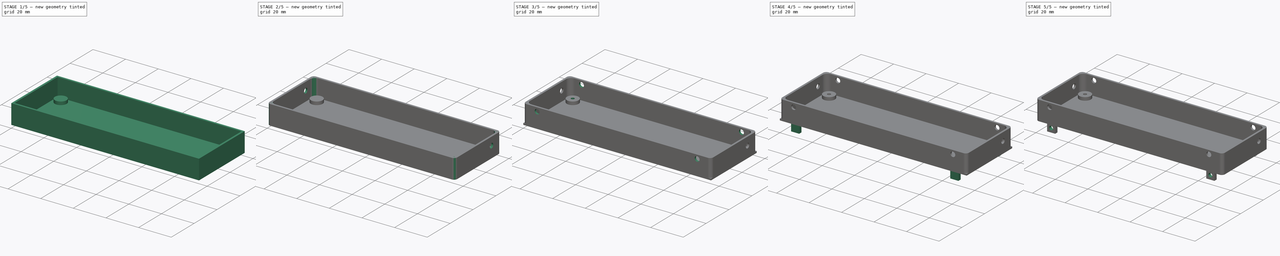
[diagram: build sequence overview — one tinted view per stage of 5, left to right]
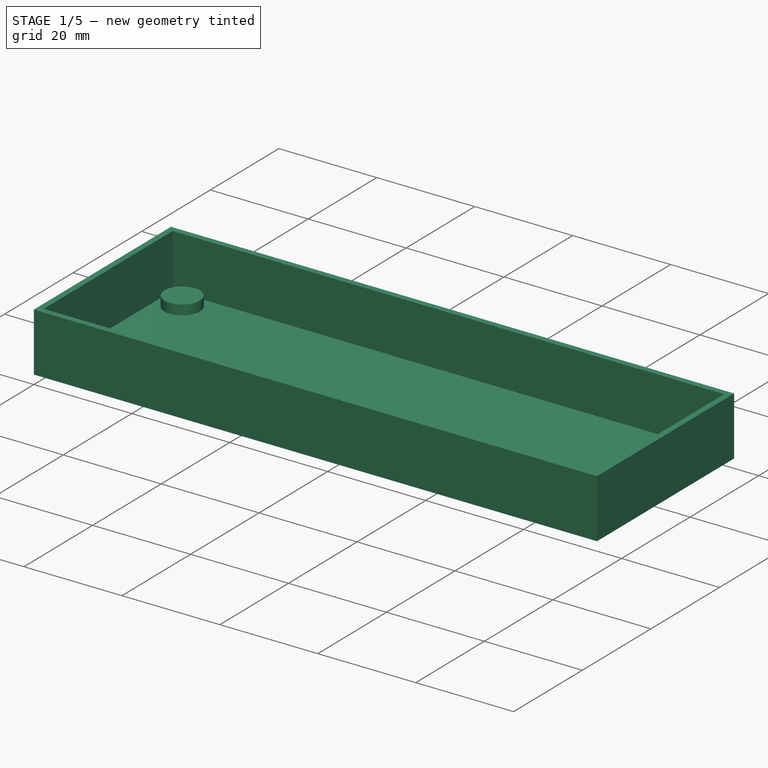
[diagram: stage 1 of 5 — iso view after this stage's code; geometry added in this stage tinted green]
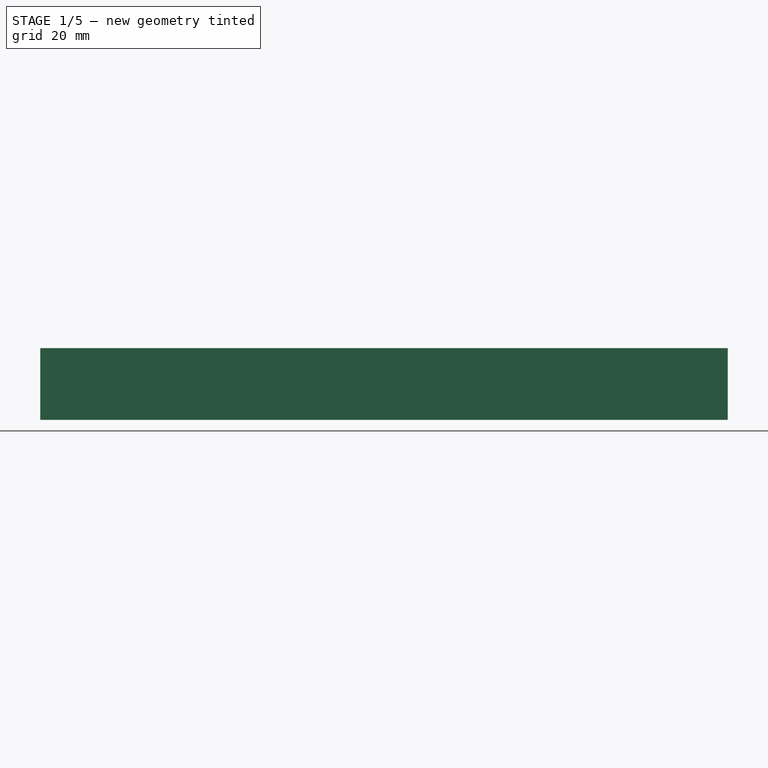
[diagram: stage 1 of 5 — front view after this stage's code; geometry added in this stage tinted green]
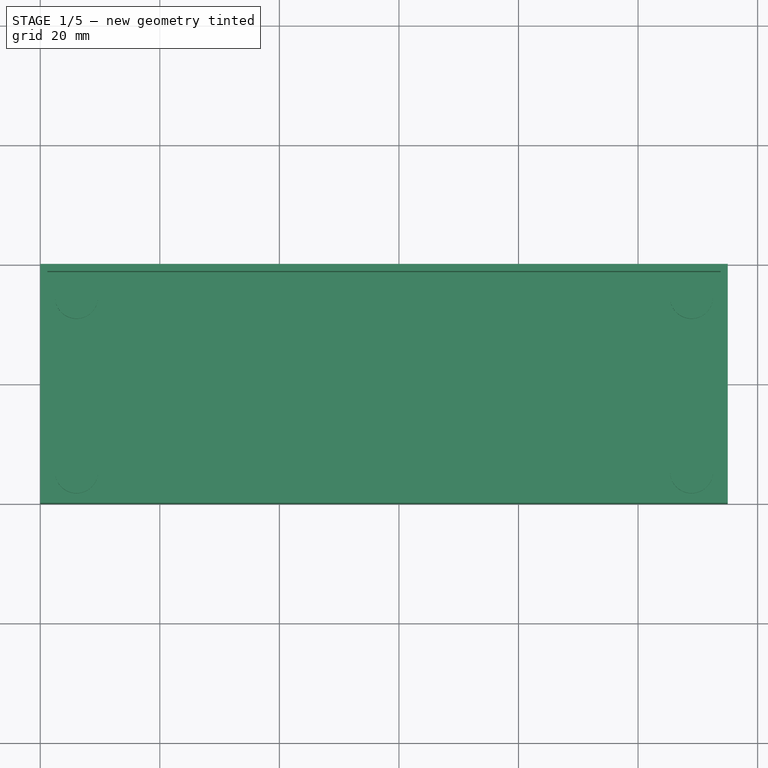
[diagram: stage 1 of 5 — top view after this stage's code; geometry added in this stage tinted green]
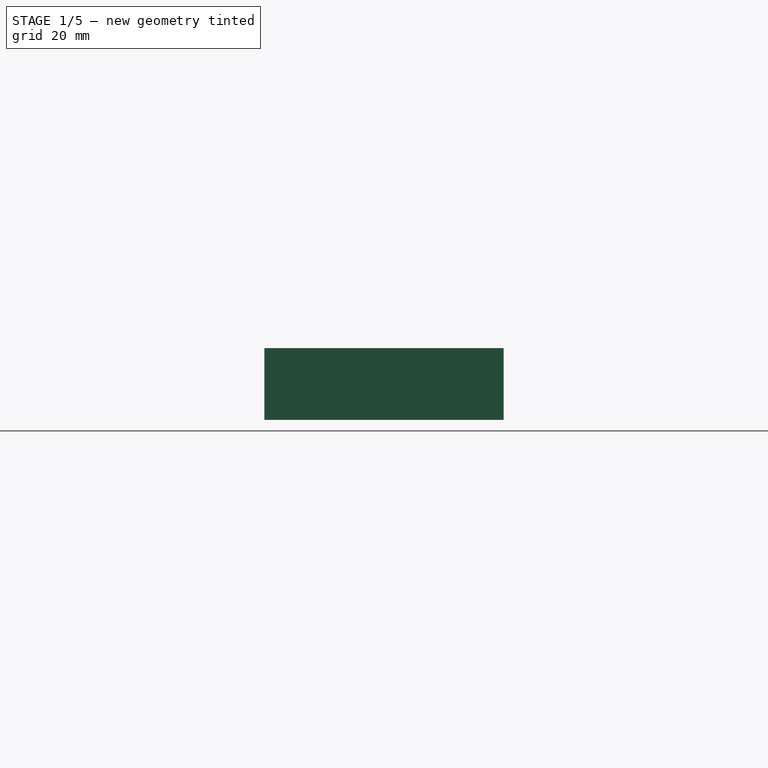
[diagram: stage 1 of 5 — right view after this stage's code; geometry added in this stage tinted green]
FCSTD DOCUMENT  (FreeCAD 0.19R24291 (Git))
Label: case
License: All rights reserved
LicenseURL: http://en.wikipedia.org/wiki/All_rights_reserved
objects: Sketcher::SketchObject×12, PartDesign::Pocket×8, PartDesign::Pad×4, PartDesign::Fillet×3, PartDesign::Body×2, Part::Feature×1
note: 45 computed .brp shape members not serialized (recipe doc carries the construction recipe); baked Part::Feature solids carry a one-line shape summary decoded from their .brp

FEATURE [Part::Feature] Feature  label="pcb"
  Placement = pos=(-24.48,109.52,3) rot=(0,0,1;0rad)
  shape: bbox 110.5 x 36.83 x 13 mm, 2263 faces, 84 solids (baked)
FEATURE [Sketcher::SketchObject] Sketch
  FullyConstrained = true
  MapMode = 5
  Support = -> [XY_Plane]
  sketch-geometry (4):
    g0: LineSegment StartX=0 StartY=0 StartZ=0 EndX=115 EndY=0 EndZ=0
    g1: LineSegment StartX=115 StartY=0 StartZ=0 EndX=115 EndY=40 EndZ=0
    g2: LineSegment StartX=115 StartY=40 StartZ=0 EndX=0 EndY=40 EndZ=0
    g3: LineSegment StartX=0 StartY=40 StartZ=0 EndX=0 EndY=0 EndZ=0
  constraints (11):
    c: Coincident(g0,g1)
    c: Coincident(g1,g2)
    c: Coincident(g2,g3)
    c: Coincident(g3,g0)
    c: Horizontal(g0)
    c: Horizontal(g2)
    c: Vertical(g1)
    c: Vertical(g3)
    c: Coincident(g0,g-1)
    c: DistanceX(g0,g0) = 115
    c: DistanceY(g3,g3) = 40
FEATURE [PartDesign::Pad] Pad
  Direction = (1,1,1)
  Length = 12
  Length2 = 100
  Profile = -> Sketch
  Type = 0
FEATURE [Sketcher::SketchObject] Sketch001
  ExternalGeometry = -> [Pad]
  FullyConstrained = true
  MapMode = 5
  Placement = pos=(0,0,12) rot=(0,0,1;0rad)
  Support = -> [Pad]
  sketch-geometry (12):
    g0: LineSegment StartX=1.2 StartY=1.2 StartZ=0 EndX=113.8 EndY=1.2 EndZ=0
    g1: LineSegment StartX=113.8 StartY=1.2 StartZ=0 EndX=113.8 EndY=38.8 EndZ=0
    g2: LineSegment StartX=113.8 StartY=38.8 StartZ=0 EndX=1.2 EndY=38.8 EndZ=0
    g3: LineSegment StartX=1.2 StartY=38.8 StartZ=0 EndX=1.2 EndY=1.2 EndZ=0
    g4: LineSegment StartX=115 StartY=40 StartZ=0 EndX=113.8 EndY=40 EndZ=0
    g5: LineSegment StartX=113.8 StartY=40 StartZ=0 EndX=113.8 EndY=38.8 EndZ=0
    g6: LineSegment StartX=113.8 StartY=38.8 StartZ=0 EndX=115 EndY=38.8 EndZ=0
    g7: LineSegment StartX=115 StartY=38.8 StartZ=0 EndX=115 EndY=40 EndZ=0
    g8: LineSegment StartX=0 StartY=0 StartZ=0 EndX=1.2 EndY=0 EndZ=0
    g9: LineSegment StartX=1.2 StartY=0 StartZ=0 EndX=1.2 EndY=1.2 EndZ=0
    g10: LineSegment StartX=1.2 StartY=1.2 StartZ=0 EndX=0 EndY=1.2 EndZ=0
    g11: LineSegment StartX=0 StartY=1.2 StartZ=0 EndX=0 EndY=0 EndZ=0
  constraints (32):
    c: Coincident(g0,g1)
    c: Coincident(g1,g2)
    c: Coincident(g2,g3)
    c: Coincident(g3,g0)
    c: Horizontal(g0)
    c: Horizontal(g2)
    c: Vertical(g1)
    c: Vertical(g3)
    c: Coincident(g4,g5)
    c: Coincident(g5,g6)
    c: Coincident(g6,g7)
    c: Coincident(g7,g4)
    c: Horizontal(g4)
    c: Horizontal(g6)
    c: Vertical(g5)
    c: Vertical(g7)
    c: Coincident(g4,g-3)
    c: Coincident(g5,g1)
    c: Coincident(g8,g9)
    c: Coincident(g9,g10)
    c: Coincident(g10,g11)
    c: Coincident(g11,g8)
    c: Horizontal(g8)
    c: Horizontal(g10)
    c: Vertical(g9)
    c: Vertical(g11)
    c: Coincident(g8,g-1)
    c: Coincident(g9,g0)
    c: Equal(g11,g8)
    c: Equal(g8,g7)
    c: Equal(g7,g4)
    c: DistanceX(g4,g4) = 1.2
FEATURE [PartDesign::Pocket] Pocket
  BaseFeature = -> Pad
  Length = 0
  Length2 = 100
  Offset = -1
  Profile = -> Sketch001
  Type = 3
  UpToFace = -> Pad [Face5]
FEATURE [Sketcher::SketchObject] Sketch002
  ExternalGeometry = -> [Pocket]
  FullyConstrained = true
  MapMode = 5
  Placement = pos=(0,0,1) rot=(0,0,1;0rad)
  Support = -> [Pocket]
  sketch-geometry (16):
    g0: LineSegment StartX=1.2 StartY=1.2 StartZ=0 EndX=6.065 EndY=1.2 EndZ=0
    g1: LineSegment StartX=6.065 StartY=1.2 StartZ=0 EndX=6.065 EndY=5.395 EndZ=0
    g2: LineSegment StartX=6.065 StartY=5.395 StartZ=0 EndX=1.2 EndY=5.395 EndZ=0
    g3: LineSegment StartX=1.2 StartY=5.395 StartZ=0 EndX=1.2 EndY=1.2 EndZ=0
    g4: LineSegment StartX=113.8 StartY=38.8 StartZ=0 EndX=108.935 EndY=38.8 EndZ=0
    g5: LineSegment StartX=108.935 StartY=38.8 StartZ=0 EndX=108.935 EndY=34.605 EndZ=0
    g6: LineSegment StartX=108.935 StartY=34.605 StartZ=0 EndX=113.8 EndY=34.605 EndZ=0
    g7: LineSegment StartX=113.8 StartY=34.605 StartZ=0 EndX=113.8 EndY=38.8 EndZ=0
    g8: LineSegment StartX=6.065 StartY=5.395 StartZ=0 EndX=108.935 EndY=5.395 EndZ=0
    g9: LineSegment StartX=108.935 StartY=5.395 StartZ=0 EndX=108.935 EndY=34.605 EndZ=0
    g10: LineSegment StartX=108.935 StartY=34.605 StartZ=0 EndX=6.065 EndY=34.605 EndZ=0
    g11: LineSegment StartX=6.065 StartY=34.605 StartZ=0 EndX=6.065 EndY=5.395 EndZ=0
    g12: Circle CenterX=6.065 CenterY=34.605 CenterZ=0 NormalX=0 NormalY=0 NormalZ=1 AngleXU=0 Radius=3.6
    g13: Circle CenterX=6.065 CenterY=5.395 CenterZ=0 NormalX=0 NormalY=0 NormalZ=1 AngleXU=0 Radius=3.6
    g14: Circle CenterX=108.935 CenterY=34.605 CenterZ=0 NormalX=0 NormalY=0 NormalZ=1 AngleXU=0 Radius=3.6
    g15: Circle CenterX=108.935 CenterY=5.395 CenterZ=0 NormalX=0 NormalY=0 NormalZ=1 AngleXU=0 Radius=3.6
  constraints (40):
    c: Coincident(g0,g1)
    c: Coincident(g1,g2)
    c: Coincident(g2,g3)
    c: Coincident(g3,g0)
    c: Horizontal(g0)
    c: Horizontal(g2)
    c: Vertical(g1)
    c: Vertical(g3)
    c: Coincident(g4,g5)
    c: Coincident(g5,g6)
    c: Coincident(g6,g7)
    c: Coincident(g7,g4)
    c: Horizontal(g4)
    c: Horizontal(g6)
    c: Vertical(g5)
    c: Vertical(g7)
    c: Coincident(g4,g-3)
    c: Coincident(g8,g9)
    c: Coincident(g9,g10)
    c: Coincident(g10,g11)
    c: Coincident(g11,g8)
    c: Horizontal(g8)
    c: Horizontal(g10)
    c: Vertical(g9)
    c: Vertical(g11)
    c: Coincident(g8,g1)
    c: Coincident(g9,g5)
    c: Coincident(g0,g-4)
    c: DistanceY(g11,g11) = 29.21
    c: Equal(g7,g3)
    c: Equal(g0,g4)
    c: DistanceX(g10,g10) = 102.87
    c: Coincident(g12,g10)
    c: Coincident(g13,g1)
    c: Coincident(g14,g5)
    c: Coincident(g15,g8)
    c: Equal(g12,g13)
    c: Equal(g13,g14)
    c: Equal(g14,g15)
    c: Radius(g12) = 3.6
FEATURE [PartDesign::Pad] Pad001
  BaseFeature = -> Pocket
  Direction = (1,1,1)
  Length = 2
  Length2 = 100
  Profile = -> Sketch002
  Type = 0
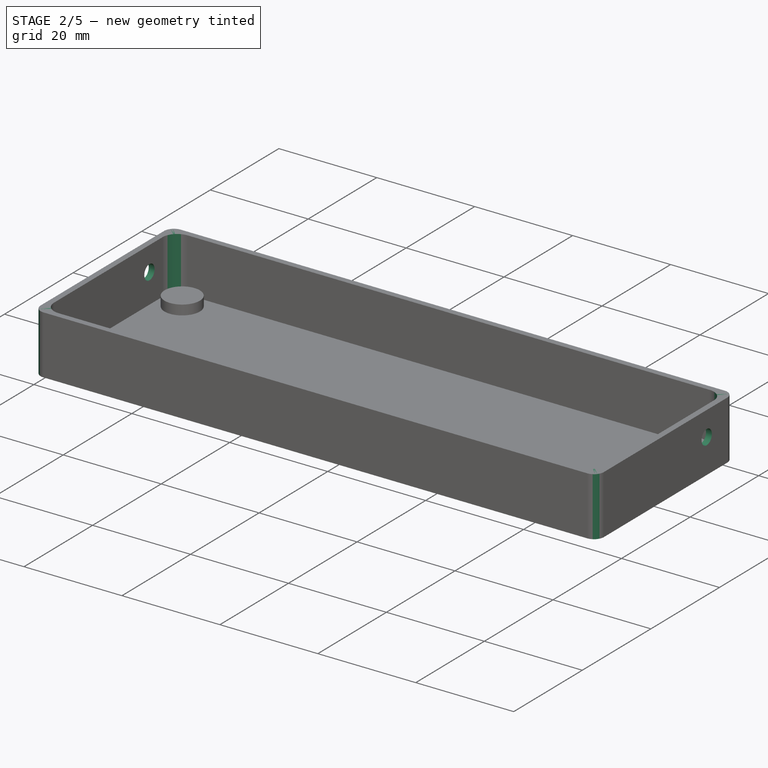
[diagram: stage 2 of 5 — iso view after this stage's code; geometry added in this stage tinted green]
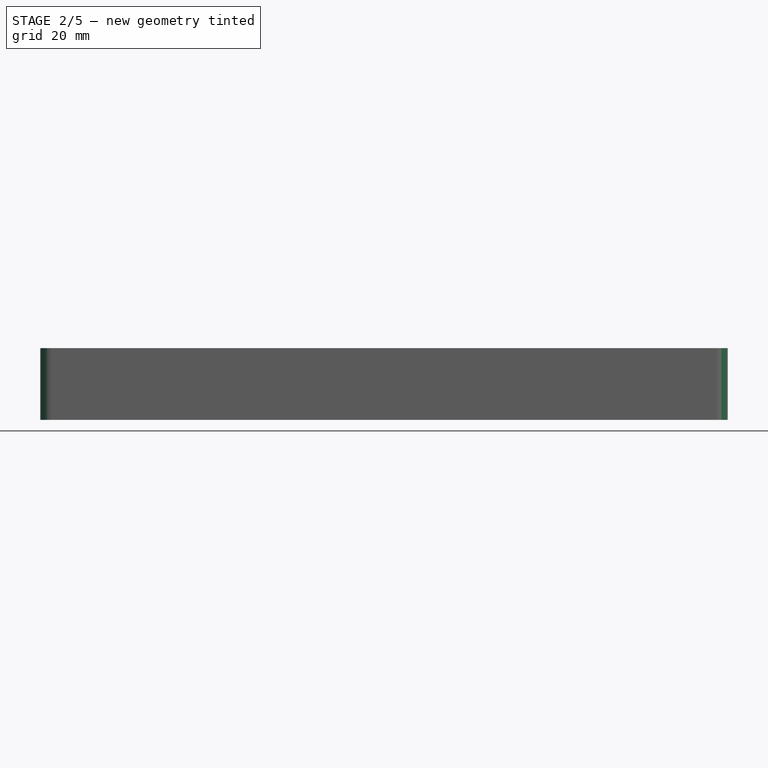
[diagram: stage 2 of 5 — front view after this stage's code; geometry added in this stage tinted green]
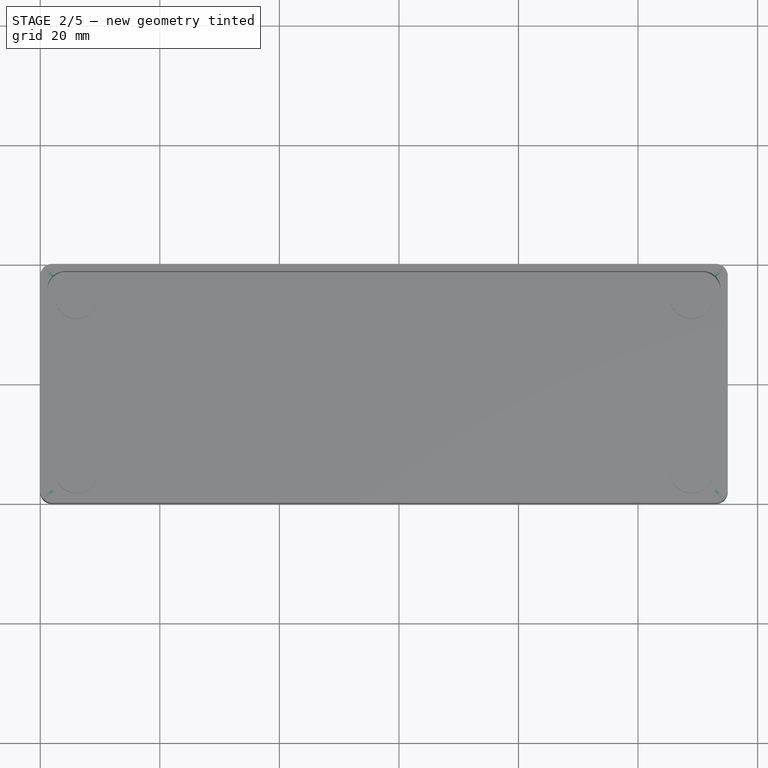
[diagram: stage 2 of 5 — top view after this stage's code; geometry added in this stage tinted green]
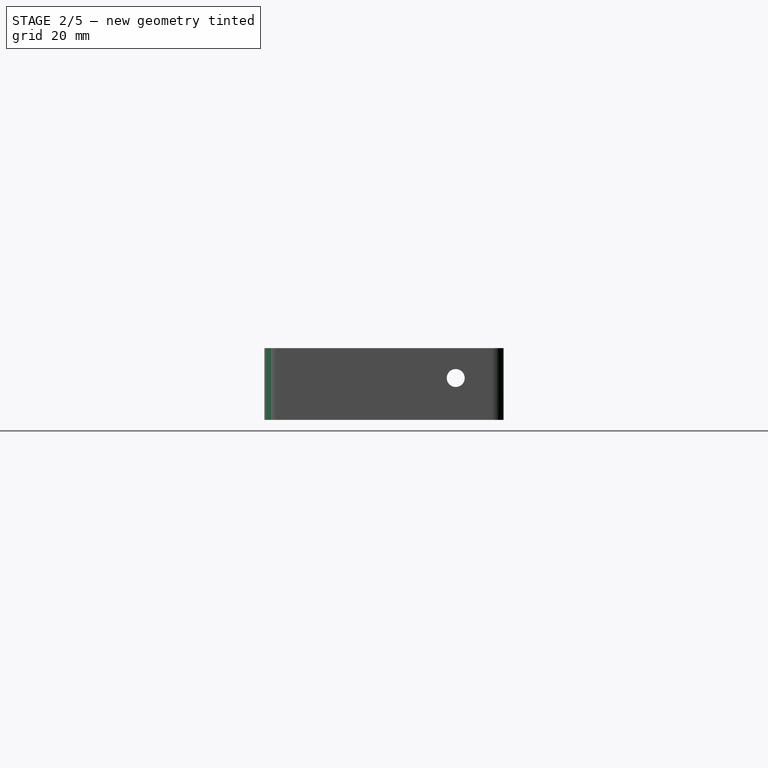
[diagram: stage 2 of 5 — right view after this stage's code; geometry added in this stage tinted green]
FEATURE [Sketcher::SketchObject] Sketch004
  ExternalGeometry = -> [Pad001]
  FullyConstrained = true
  MapMode = 5
  Placement = pos=(0,0,0) rot=(0.57735,-0.57735,-0.57735;2.0944rad)
  Support = -> [Pad001]
  sketch-geometry (1):
    g0: Circle CenterX=-32 CenterY=7 CenterZ=0 NormalX=0 NormalY=0 NormalZ=1 AngleXU=0 Radius=1.5
  constraints (3):
    c: DistanceX(g-3,g0) = 8
    c: DistanceY(g-3,g0) = 7
    c: Radius(g0) = 1.5
FEATURE [PartDesign::Pocket] Pocket001
  BaseFeature = -> Pad001
  Length = 5
  Length2 = 100
  Profile = -> Sketch004
  Type = 1
FEATURE [PartDesign::Fillet] Fillet
  Base = -> Pocket001 [Edge28,Edge25,Edge23,Edge26]
  BaseFeature = -> Pocket001
  Radius = 3
  SupportTransform = false
FEATURE [PartDesign::Fillet] Fillet001
  Base = -> Fillet [Edge32,Edge38,Edge34,Edge31]
  BaseFeature = -> Fillet
  Radius = 2
  SupportTransform = false
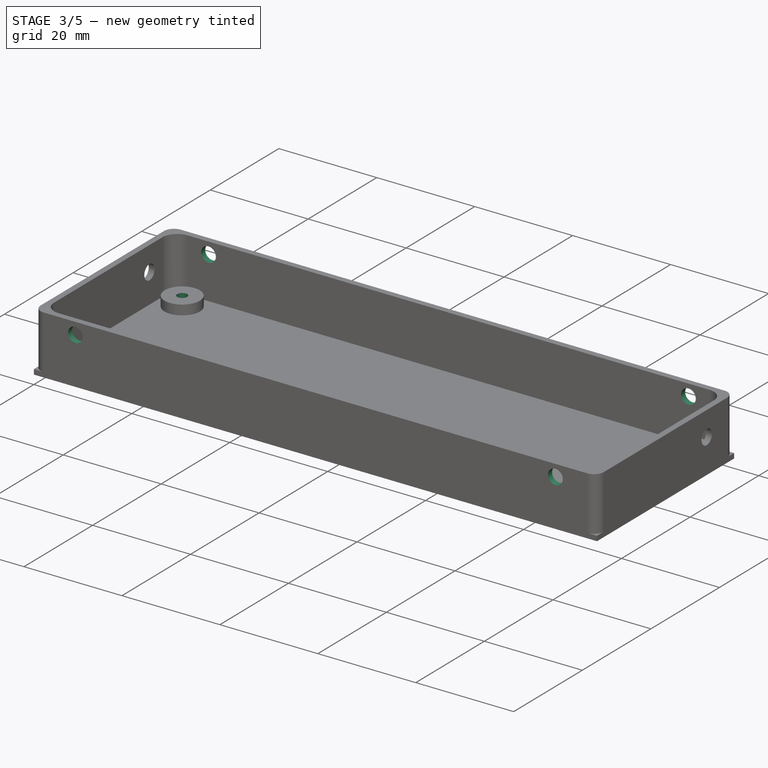
[diagram: stage 3 of 5 — iso view after this stage's code; geometry added in this stage tinted green]
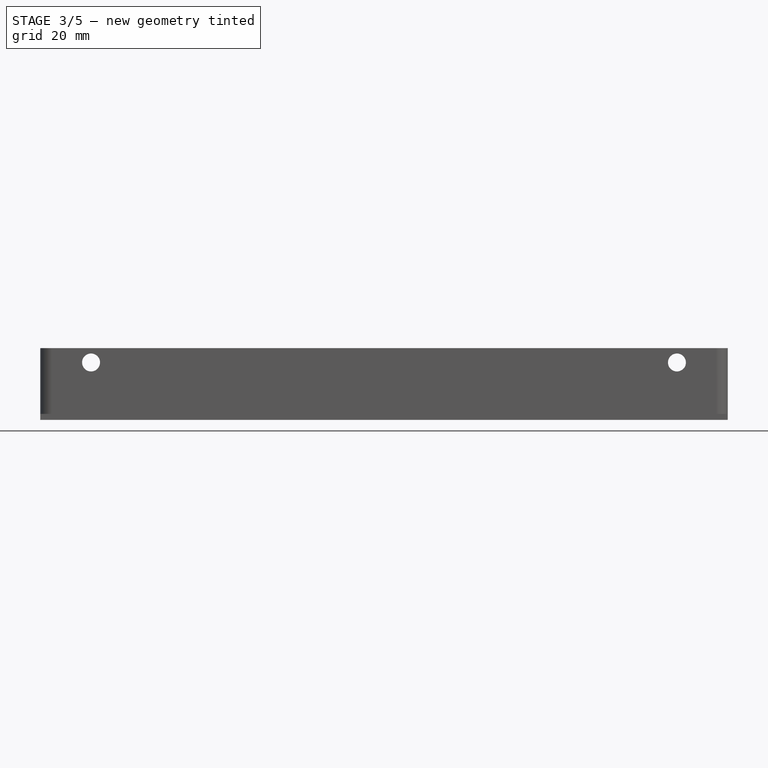
[diagram: stage 3 of 5 — front view after this stage's code; geometry added in this stage tinted green]
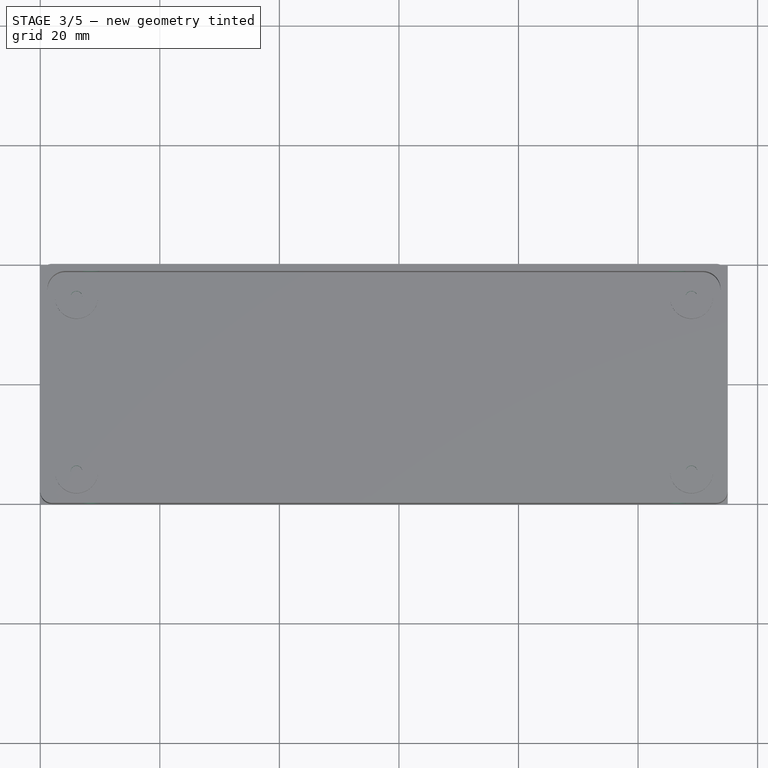
[diagram: stage 3 of 5 — top view after this stage's code; geometry added in this stage tinted green]
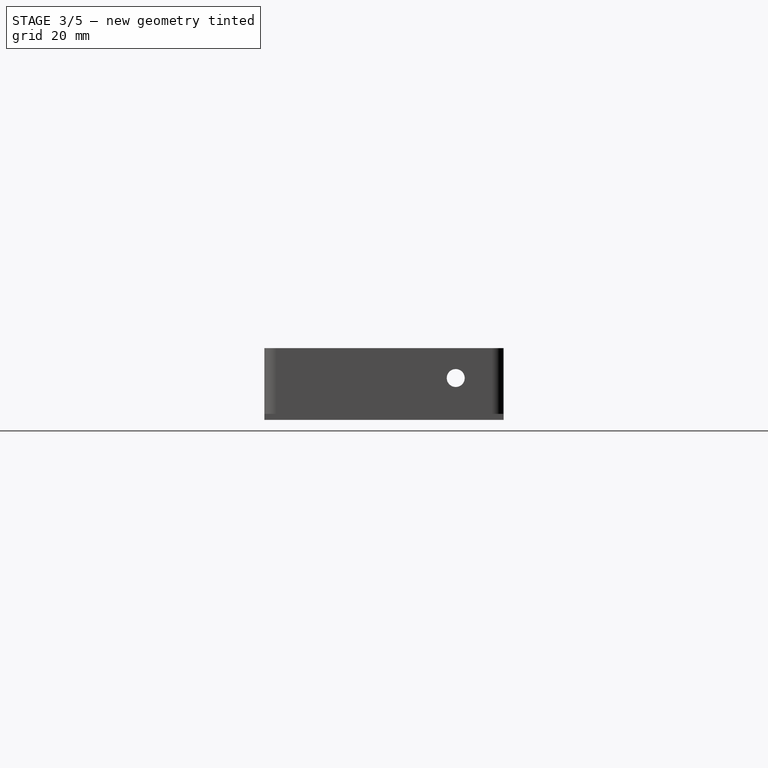
[diagram: stage 3 of 5 — right view after this stage's code; geometry added in this stage tinted green]
FEATURE [Sketcher::SketchObject] Sketch005
  FullyConstrained = true
  MapMode = 5
  Support = -> [XY_Plane001]
  sketch-geometry (4):
    g0: LineSegment StartX=0 StartY=0 StartZ=0 EndX=115 EndY=0 EndZ=0
    g1: LineSegment StartX=115 StartY=0 StartZ=0 EndX=115 EndY=40 EndZ=0
    g2: LineSegment StartX=115 StartY=40 StartZ=0 EndX=0 EndY=40 EndZ=0
    g3: LineSegment StartX=0 StartY=40 StartZ=0 EndX=0 EndY=0 EndZ=0
  constraints (11):
    c: Coincident(g0,g1)
    c: Coincident(g1,g2)
    c: Coincident(g2,g3)
    c: Coincident(g3,g0)
    c: Horizontal(g0)
    c: Horizontal(g2)
    c: Vertical(g1)
    c: Vertical(g3)
    c: Coincident(g0,g-1)
    c: DistanceX(g2,g2) = 115
    c: DistanceY(g3,g3) = 40
FEATURE [PartDesign::Pad] Pad002
  Direction = (1,1,1)
  Length = 1
  Length2 = 100
  Profile = -> Sketch005
  Type = 0
FEATURE [PartDesign::Body] Body001  label="lid"
  Group = -> [Sketch005,Pad002,Sketch006,Pad003,Sketch007,Pocket002,Sketch008,Pocket003,Sketch009,Pocket004,Sketch010,Pocket005,Fillet002]
  Origin = -> Origin001
  Placement = pos=(0,0,12) rot=(0,0,1;0rad)
  Tip = -> Fillet002
FEATURE [Sketcher::SketchObject] Sketch011
  FullyConstrained = true
  MapMode = 5
  Placement = pos=(0,0,0) rot=(1,0,0;1.5708rad)
  Support = -> [Fillet001]
  sketch-geometry (2):
    g0: Circle CenterX=8.5 CenterY=9.6 CenterZ=0 NormalX=0 NormalY=0 NormalZ=1 AngleXU=0 Radius=1.5
    g1: Circle CenterX=106.5 CenterY=9.6 CenterZ=0 NormalX=0 NormalY=0 NormalZ=1 AngleXU=0 Radius=1.5
  constraints (6):
    c: DistanceY(g-1,g0) = 9.6
    c: DistanceX(g-1,g0) = 8.5
    c: Horizontal(g1,g0)
    c: DistanceX(g0,g1) = 98
    c: Equal(g0,g1)
    c: Radius(g0) = 1.5
FEATURE [PartDesign::Pocket] Pocket006
  BaseFeature = -> Fillet001
  Length = 5
  Length2 = 100
  Profile = -> Sketch011
  Type = 1
FEATURE [Sketcher::SketchObject] Sketch012
  ExternalGeometry = -> [Pocket006]
  FullyConstrained = true
  MapMode = 5
  Placement = pos=(0,0,3) rot=(0,0,1;0rad)
  Support = -> [Pocket006]
  sketch-geometry (4):
    g0: Circle CenterX=6.065 CenterY=34.605 CenterZ=0 NormalX=0 NormalY=0 NormalZ=1 AngleXU=0 Radius=1
    g1: Circle CenterX=108.935 CenterY=34.605 CenterZ=0 NormalX=0 NormalY=0 NormalZ=1 AngleXU=0 Radius=1
    g2: Circle CenterX=108.935 CenterY=5.395 CenterZ=0 NormalX=0 NormalY=0 NormalZ=1 AngleXU=0 Radius=1
    g3: Circle CenterX=6.065 CenterY=5.395 CenterZ=0 NormalX=0 NormalY=0 NormalZ=1 AngleXU=0 Radius=1
  constraints (8):
    c: Coincident(g0,g-3)
    c: Coincident(g1,g-5)
    c: Coincident(g2,g-6)
    c: Coincident(g3,g-4)
    c: Equal(g0,g1)
    c: Equal(g1,g2)
    c: Equal(g2,g3)
    c: Radius(g0) = 1
FEATURE [PartDesign::Pocket] Pocket007
  BaseFeature = -> Pocket006
  Length = 6
  Length2 = 100
  Profile = -> Sketch012
  Type = 0
FEATURE [PartDesign::Body] Body  label="case"
  Group = -> [Sketch,Pad,Sketch001,Pocket,Sketch002,Pad001,Sketch004,Pocket001,Fillet,Fillet001,Sketch011,Pocket006,Sketch012,Pocket007]
  Origin = -> Origin
  Tip = -> Pocket007
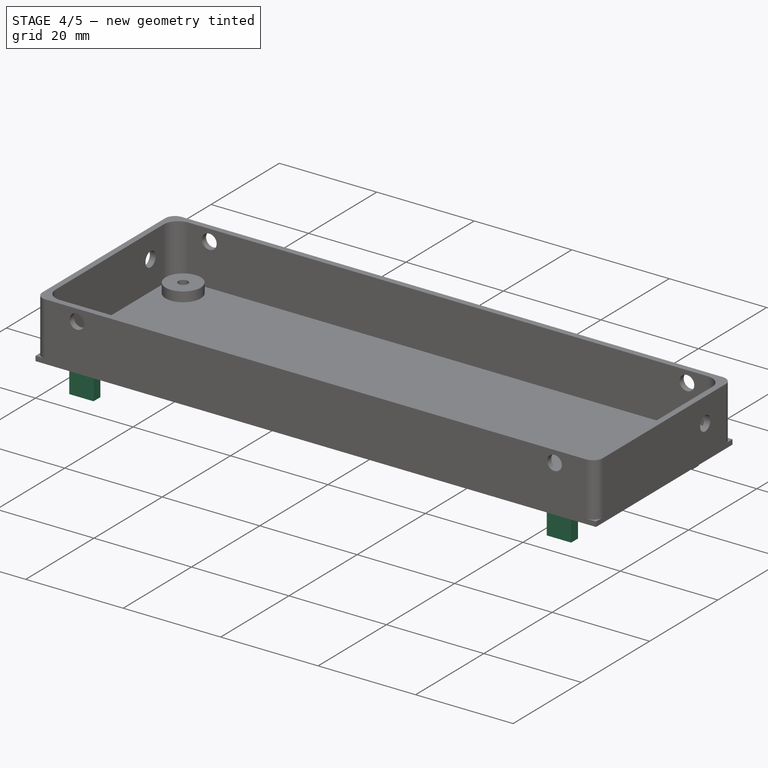
[diagram: stage 4 of 5 — iso view after this stage's code; geometry added in this stage tinted green]
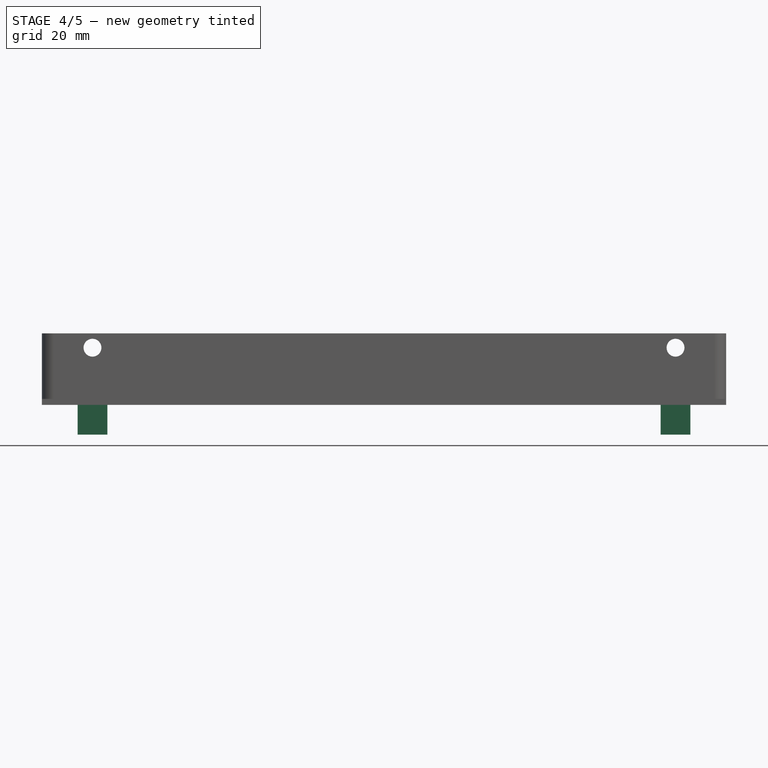
[diagram: stage 4 of 5 — front view after this stage's code; geometry added in this stage tinted green]
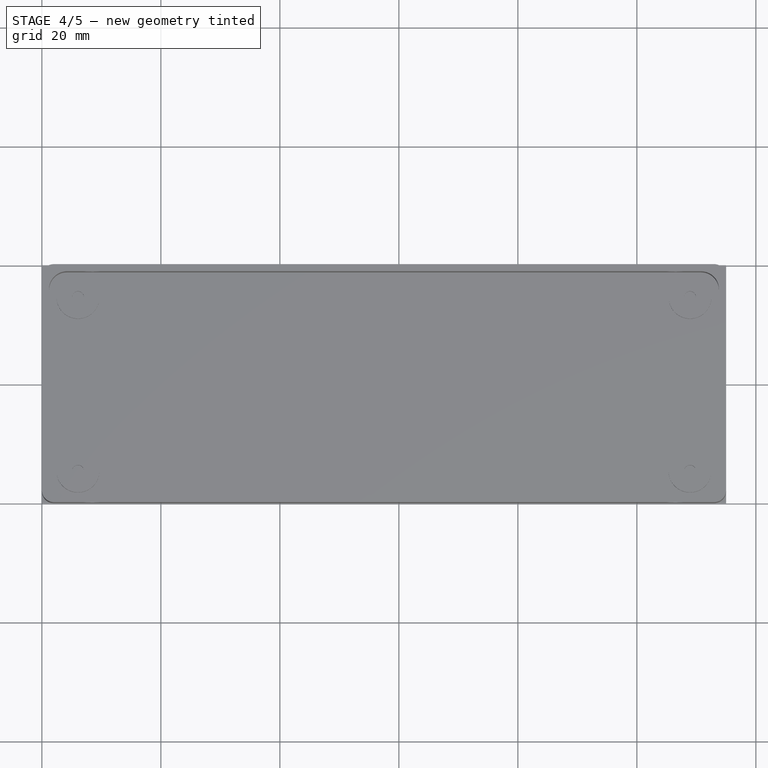
[diagram: stage 4 of 5 — top view after this stage's code; geometry added in this stage tinted green]
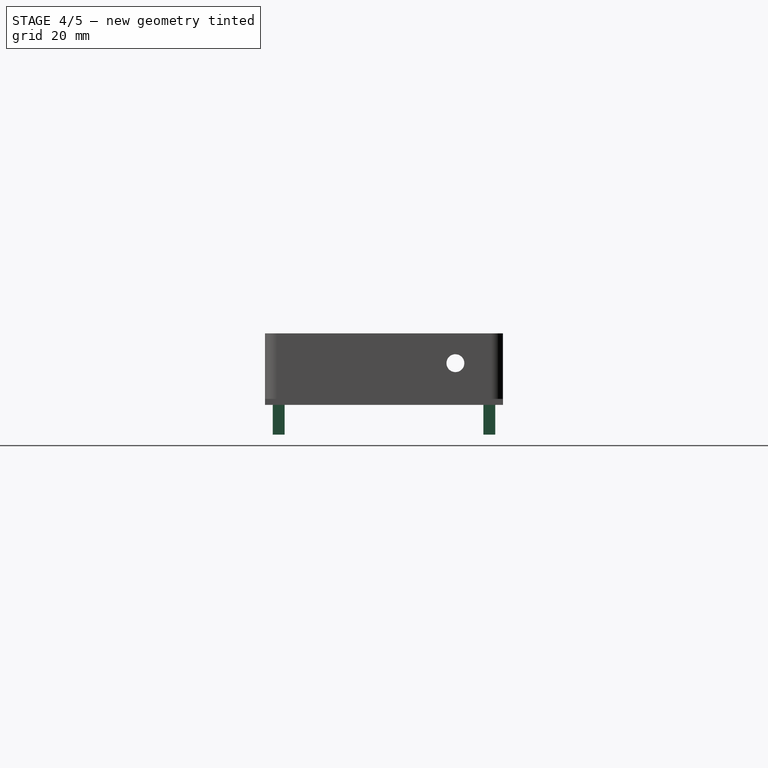
[diagram: stage 4 of 5 — right view after this stage's code; geometry added in this stage tinted green]
FEATURE [Sketcher::SketchObject] Sketch006
  ExternalGeometry = -> [Pad002]
  FullyConstrained = true
  MapMode = 5
  Placement = pos=(0,0,0) rot=(1,0,0;3.14159rad)
  sketch-geometry (32):
    g0: LineSegment StartX=6 StartY=-1.3 StartZ=0 EndX=11 EndY=-1.3 EndZ=0
    g1: LineSegment StartX=11 StartY=-1.3 StartZ=0 EndX=11 EndY=-3.3 EndZ=0
    g2: LineSegment StartX=11 StartY=-3.3 StartZ=0 EndX=6 EndY=-3.3 EndZ=0
    g3: LineSegment StartX=6 StartY=-3.3 StartZ=0 EndX=6 EndY=-1.3 EndZ=0
    g4: LineSegment StartX=109 StartY=-1.3 StartZ=0 EndX=104 EndY=-1.3 EndZ=0
    g5: LineSegment StartX=104 StartY=-1.3 StartZ=0 EndX=104 EndY=-3.3 EndZ=0
    g6: LineSegment StartX=104 StartY=-3.3 StartZ=0 EndX=109 EndY=-3.3 EndZ=0
    g7: LineSegment StartX=109 StartY=-3.3 StartZ=0 EndX=109 EndY=-1.3 EndZ=0
    g8: LineSegment StartX=109 StartY=-38.7 StartZ=0 EndX=104 EndY=-38.7 EndZ=0
    g9: LineSegment StartX=104 StartY=-38.7 StartZ=0 EndX=104 EndY=-36.7 EndZ=0
    g10: LineSegment StartX=104 StartY=-36.7 StartZ=0 EndX=109 EndY=-36.7 EndZ=0
    g11: LineSegment StartX=109 StartY=-36.7 StartZ=0 EndX=109 EndY=-38.7 EndZ=0
    g12: LineSegment StartX=6 StartY=-38.7 StartZ=0 EndX=11 EndY=-38.7 EndZ=0
    g13: LineSegment StartX=11 StartY=-38.7 StartZ=0 EndX=11 EndY=-36.7 EndZ=0
    g14: LineSegment StartX=11 StartY=-36.7 StartZ=0 EndX=6 EndY=-36.7 EndZ=0
    g15: LineSegment StartX=6 StartY=-36.7 StartZ=0 EndX=6 EndY=-38.7 EndZ=0
    g16: LineSegment StartX=115 StartY=-40 StartZ=0 EndX=109 EndY=-40 EndZ=0
    g17: LineSegment StartX=109 StartY=-40 StartZ=0 EndX=109 EndY=-38.7 EndZ=0
    g18: LineSegment StartX=109 StartY=-38.7 StartZ=0 EndX=115 EndY=-38.7 EndZ=0
    g19: LineSegment StartX=115 StartY=-38.7 StartZ=0 EndX=115 EndY=-40 EndZ=0
    g20: LineSegment StartX=115 StartY=0 StartZ=0 EndX=109 EndY=0 EndZ=0
    g21: LineSegment StartX=109 StartY=0 StartZ=0 EndX=109 EndY=-1.3 EndZ=0
    g22: LineSegment StartX=109 StartY=-1.3 StartZ=0 EndX=115 EndY=-1.3 EndZ=0
    g23: LineSegment StartX=115 StartY=-1.3 StartZ=0 EndX=115 EndY=0 EndZ=0
    g24: LineSegment StartX=0 StartY=-40 StartZ=0 EndX=6 EndY=-40 EndZ=0
    g25: LineSegment StartX=6 StartY=-40 StartZ=0 EndX=6 EndY=-38.7 EndZ=0
    g26: LineSegment StartX=6 StartY=-38.7 StartZ=0 EndX=0 EndY=-38.7 EndZ=0
    g27: LineSegment StartX=0 StartY=-38.7 StartZ=0 EndX=0 EndY=-40 EndZ=0
    g28: LineSegment StartX=0 StartY=0 StartZ=0 EndX=6 EndY=0 EndZ=0
    g29: LineSegment StartX=6 StartY=0 StartZ=0 EndX=6 EndY=-1.3 EndZ=0
    g30: LineSegment StartX=6 StartY=-1.3 StartZ=0 EndX=0 EndY=-1.3 EndZ=0
    g31: LineSegment StartX=0 StartY=-1.3 StartZ=0 EndX=0 EndY=0 EndZ=0
  constraints (88):
    c: Coincident(g0,g1)
    c: Coincident(g1,g2)
    c: Coincident(g2,g3)
    c: Coincident(g3,g0)
    c: Horizontal(g0)
    c: Horizontal(g2)
    c: Vertical(g1)
    c: Vertical(g3)
    c: Coincident(g4,g5)
    c: Coincident(g5,g6)
    c: Coincident(g6,g7)
    c: Coincident(g7,g4)
    c: Horizontal(g4)
    c: Horizontal(g6)
    c: Vertical(g5)
    c: Vertical(g7)
    c: Coincident(g8,g9)
    c: Coincident(g9,g10)
    c: Coincident(g10,g11)
    c: Coincident(g11,g8)
    c: Horizontal(g8)
    c: Horizontal(g10)
    c: Vertical(g9)
    c: Vertical(g11)
    c: Coincident(g12,g13)
    c: Coincident(g13,g14)
    c: Coincident(g14,g15)
    c: Coincident(g15,g12)
    c: Horizontal(g12)
    c: Horizontal(g14)
    c: Vertical(g13)
    c: Vertical(g15)
    c: Coincident(g16,g17)
    c: Coincident(g17,g18)
    c: Coincident(g18,g19)
    c: Coincident(g19,g16)
    c: Horizontal(g16)
    c: Horizontal(g18)
    c: Vertical(g17)
    c: Vertical(g19)
    c: Coincident(g16,g-3)
    c: Coincident(g17,g8)
    c: Coincident(g20,g21)
    c: Coincident(g21,g22)
    c: Coincident(g22,g23)
    c: Coincident(g23,g20)
    c: Horizontal(g20)
    c: Horizontal(g22)
    c: Vertical(g21)
    c: Vertical(g23)
    c: Coincident(g20,g-3)
    c: Coincident(g21,g4)
    c: Coincident(g24,g25)
    c: Coincident(g25,g26)
    c: Coincident(g26,g27)
    c: Coincident(g27,g24)
    c: Horizontal(g24)
    c: Horizontal(g26)
    c: Vertical(g25)
    c: Vertical(g27)
    c: Coincident(g24,g-4)
    c: Coincident(g25,g12)
    c: Coincident(g28,g29)
    c: Coincident(g29,g30)
    c: Coincident(g30,g31)
    c: Coincident(g31,g28)
    c: Horizontal(g28)
    c: Horizontal(g30)
    c: Vertical(g29)
    c: Vertical(g31)
    c: Coincident(g28,g-1)
    c: Coincident(g29,g0)
    c: Equal(g16,g24)
    c: Equal(g24,g28)
    c: Equal(g28,g20)
    c: Equal(g31,g27)
    c: Equal(g27,g19)
    c: Equal(g19,g23)
    c: DistanceY(g23,g23) = 1.3
    c: DistanceX(g20,g20) = 6
    c: Equal(g3,g15)
    c: Equal(g15,g9)
    c: Equal(g9,g5)
    c: Equal(g14,g2)
    c: Equal(g2,g6)
    c: Equal(g6,g10)
    c: DistanceY(g1,g1) = 2
    c: DistanceX(g0,g0) = 5
FEATURE [PartDesign::Pad] Pad003
  BaseFeature = -> Pad002
  Direction = (1,1,1)
  Length = 5
  Length2 = 100
  Profile = -> Sketch006
  Type = 0
FEATURE [Sketcher::SketchObject] Sketch007
  ExternalGeometry = -> [Pad003]
  FullyConstrained = true
  MapMode = 5
  Placement = pos=(0,0,1) rot=(0,0,1;0rad)
  Support = -> [Pad003]
  sketch-geometry (16):
    g0: LineSegment StartX=6.065 StartY=5.395 StartZ=0 EndX=108.935 EndY=5.395 EndZ=0
    g1: LineSegment StartX=108.935 StartY=5.395 StartZ=0 EndX=108.935 EndY=34.605 EndZ=0
    g2: LineSegment StartX=108.935 StartY=34.605 StartZ=0 EndX=6.065 EndY=34.605 EndZ=0
    g3: LineSegment StartX=6.065 StartY=34.605 StartZ=0 EndX=6.065 EndY=5.395 EndZ=0
    g4: LineSegment StartX=115 StartY=40 StartZ=0 EndX=108.935 EndY=40 EndZ=0
    g5: LineSegment StartX=108.935 StartY=40 StartZ=0 EndX=108.935 EndY=34.605 EndZ=0
    g6: LineSegment StartX=108.935 StartY=34.605 StartZ=0 EndX=115 EndY=34.605 EndZ=0
    g7: LineSegment StartX=115 StartY=34.605 StartZ=0 EndX=115 EndY=40 EndZ=0
    g8: LineSegment StartX=0 StartY=0 StartZ=0 EndX=6.065 EndY=0 EndZ=0
    g9: LineSegment StartX=6.065 StartY=0 StartZ=0 EndX=6.065 EndY=5.395 EndZ=0
    g10: LineSegment StartX=6.065 StartY=5.395 StartZ=0 EndX=0 EndY=5.395 EndZ=0
    g11: LineSegment StartX=0 StartY=5.395 StartZ=0 EndX=0 EndY=0 EndZ=0
    g12: Circle CenterX=60.085 CenterY=10.835 CenterZ=0 NormalX=0 NormalY=0 NormalZ=1 AngleXU=0 Radius=2
    g13: Circle CenterX=60.085 CenterY=26.085 CenterZ=0 NormalX=0 NormalY=0 NormalZ=1 AngleXU=0 Radius=2
    g14: Circle CenterX=74.085 CenterY=18.585 CenterZ=0 NormalX=0 NormalY=0 NormalZ=1 AngleXU=0 Radius=2
    g15: Circle CenterX=88.085 CenterY=18.585 CenterZ=0 NormalX=0 NormalY=0 NormalZ=1 AngleXU=0 Radius=2
  constraints (44):
    c: Coincident(g0,g1)
    c: Coincident(g1,g2)
    c: Coincident(g2,g3)
    c: Coincident(g3,g0)
    c: Horizontal(g0)
    c: Horizontal(g2)
    c: Vertical(g1)
    c: Vertical(g3)
    c: Coincident(g4,g5)
    c: Coincident(g5,g6)
    c: Coincident(g6,g7)
    c: Coincident(g7,g4)
    c: Horizontal(g4)
    c: Horizontal(g6)
    c: Vertical(g5)
    c: Vertical(g7)
    c: Coincident(g4,g-3)
    c: Coincident(g5,g1)
    c: Coincident(g8,g9)
    c: Coincident(g9,g10)
    c: Coincident(g10,g11)
    c: Coincident(g11,g8)
    c: Horizontal(g8)
    c: Horizontal(g10)
    c: Vertical(g9)
    c: Vertical(g11)
    c: Coincident(g8,g-1)
    c: Coincident(g9,g0)
    c: Equal(g10,g6)
    c: Equal(g9,g5)
    c: DistanceX(g2,g2) = 102.87
    c: DistanceY(g3,g3) = 29.21
    c: Vertical(g13,g12)
    c: DistanceX(g0,g12) = 54.02
    c: DistanceY(g0,g12) = 5.44
    c: DistanceY(g0,g13) = 20.69
    c: DistanceX(g0,g14) = 68.02
    c: DistanceY(g0,g14) = 13.19
    c: Horizontal(g14,g15)
    c: DistanceX(g0,g15) = 82.02
    c: Equal(g13,g12)
    c: Equal(g12,g14)
    c: Equal(g14,g15)
    c: Radius(g13) = 2
FEATURE [PartDesign::Pocket] Pocket002
  BaseFeature = -> Pad003
  Length = 5
  Length2 = 100
  Profile = -> Sketch007
  Type = 0
FEATURE [Sketcher::SketchObject] Sketch008
  FullyConstrained = true
  MapMode = 5
  Placement = pos=(0,0,1) rot=(0,0,1;0rad)
  Support = -> [Pocket002]
  sketch-geometry (4):
    g0: LineSegment StartX=24.75 StartY=28.9 StartZ=0 EndX=50.75 EndY=28.9 EndZ=0
    g1: LineSegment StartX=50.75 StartY=28.9 StartZ=0 EndX=50.75 EndY=10.9 EndZ=0
    g2: LineSegment StartX=50.75 StartY=10.9 StartZ=0 EndX=24.75 EndY=10.9 EndZ=0
    g3: LineSegment StartX=24.75 StartY=10.9 StartZ=0 EndX=24.75 EndY=28.9 EndZ=0
  constraints (12):
    c: Coincident(g0,g1)
    c: Coincident(g1,g2)
    c: Coincident(g2,g3)
    c: Coincident(g3,g0)
    c: Horizontal(g0)
    c: Horizontal(g2)
    c: Vertical(g1)
    c: Vertical(g3)
    c: DistanceX(g0,g0) = 26
    c: DistanceY(g1,g1) = 18
    c: DistanceX(g-1,g2) = 24.75
    c: DistanceY(g-1,g2) = 10.9
FEATURE [PartDesign::Pocket] Pocket003
  BaseFeature = -> Pocket002
  Length = 5
  Length2 = 100
  Profile = -> Sketch008
  Type = 0
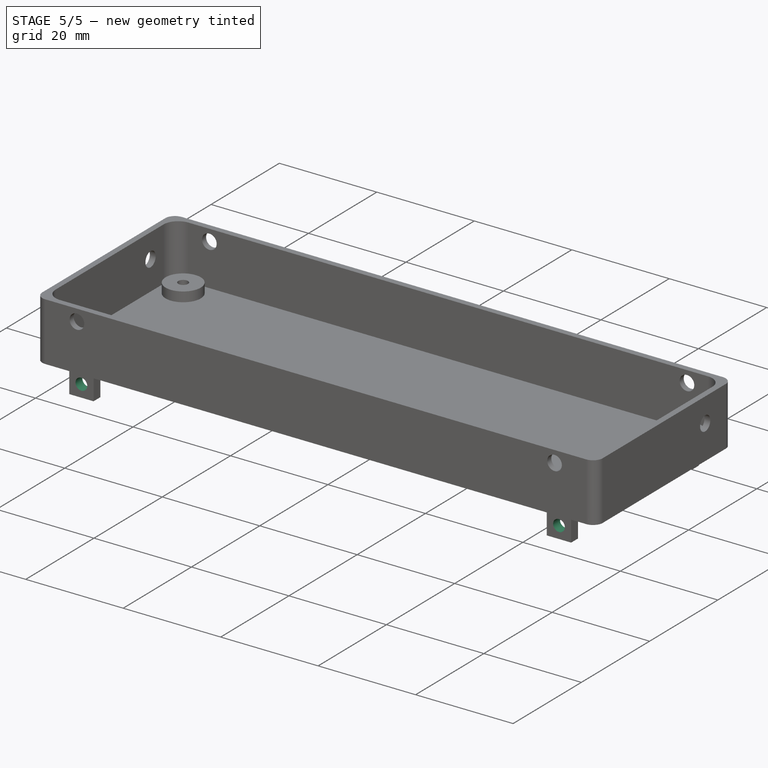
[diagram: stage 5 of 5 — iso view after this stage's code; geometry added in this stage tinted green]
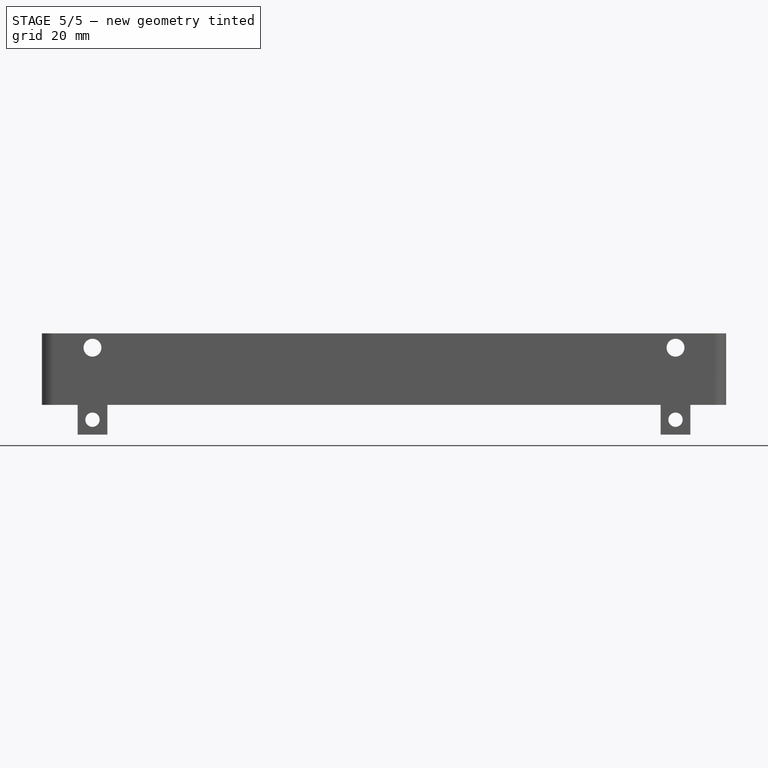
[diagram: stage 5 of 5 — front view after this stage's code; geometry added in this stage tinted green]
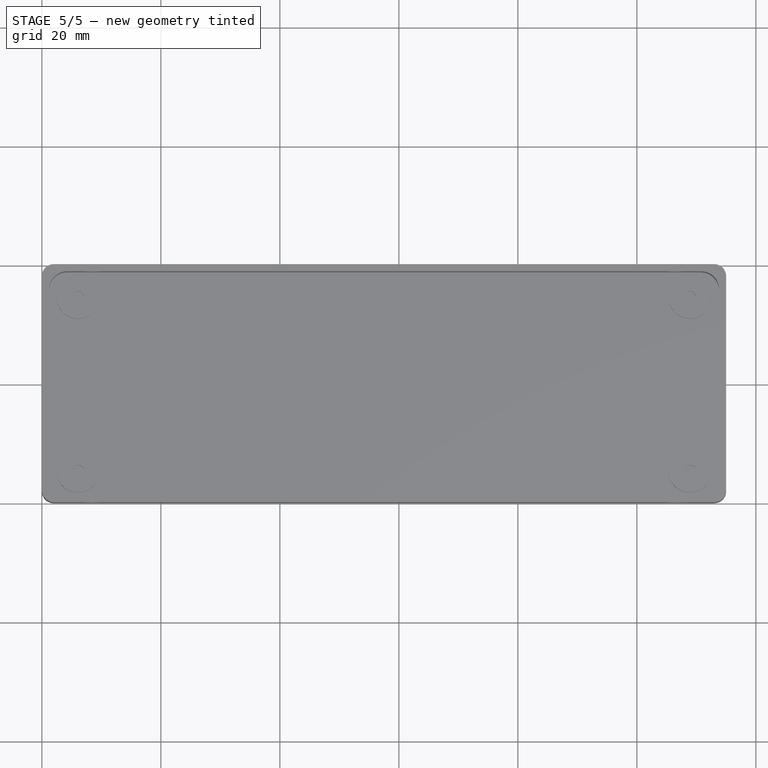
[diagram: stage 5 of 5 — top view after this stage's code; geometry added in this stage tinted green]
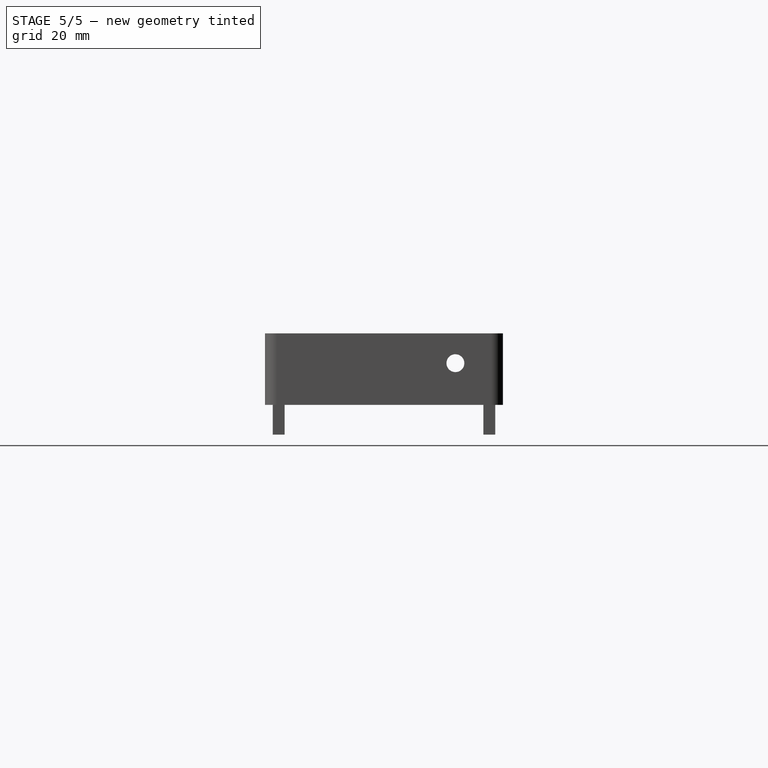
[diagram: stage 5 of 5 — right view after this stage's code; geometry added in this stage tinted green]
FEATURE [Sketcher::SketchObject] Sketch009
  FullyConstrained = true
  MapMode = 5
  Placement = pos=(0,0,1) rot=(0,0,1;0rad)
  Support = -> [Pocket003]
  sketch-geometry (4):
    g0: LineSegment StartX=12.45 StartY=37.47 StartZ=0 EndX=27.45 EndY=37.47 EndZ=0
    g1: LineSegment StartX=27.45 StartY=37.47 StartZ=0 EndX=27.45 EndY=34.27 EndZ=0
    g2: LineSegment StartX=27.45 StartY=34.27 StartZ=0 EndX=12.45 EndY=34.27 EndZ=0
    g3: LineSegment StartX=12.45 StartY=34.27 StartZ=0 EndX=12.45 EndY=37.47 EndZ=0
  constraints (12):
    c: Coincident(g0,g1)
    c: Coincident(g1,g2)
    c: Coincident(g2,g3)
    c: Coincident(g3,g0)
    c: Horizontal(g0)
    c: Horizontal(g2)
    c: Vertical(g1)
    c: Vertical(g3)
    c: DistanceY(g1,g1) = 3.2
    c: DistanceX(g2,g2) = 15
    c: DistanceY(g-1,g2) = 34.27
    c: DistanceX(g-1,g2) = 12.45
FEATURE [PartDesign::Pocket] Pocket004
  BaseFeature = -> Pocket003
  Length = 5
  Length2 = 100
  Profile = -> Sketch009
  Type = 0
FEATURE [Sketcher::SketchObject] Sketch010
  ExternalGeometry = -> [Pocket004]
  FullyConstrained = true
  MapMode = 5
  Placement = pos=(0,1.3,0) rot=(1,0,0;1.5708rad)
  Support = -> [Pocket004]
  sketch-geometry (6):
    g0: LineSegment StartX=6 StartY=0 StartZ=0 EndX=11 EndY=-5 EndZ=0
    g1: LineSegment StartX=6 StartY=-5 StartZ=0 EndX=11 EndY=0 EndZ=0
    g2: LineSegment StartX=104 StartY=-5 StartZ=0 EndX=109 EndY=0 EndZ=0
    g3: LineSegment StartX=109 StartY=-5 StartZ=0 EndX=104 EndY=0 EndZ=0
    g4: Circle CenterX=8.5 CenterY=-2.5 CenterZ=0 NormalX=0 NormalY=0 NormalZ=1 AngleXU=0 Radius=1.2
    g5: Circle CenterX=106.5 CenterY=-2.5 CenterZ=0 NormalX=0 NormalY=0 NormalZ=1 AngleXU=0 Radius=1.2
  constraints (14):
    c: Coincident(g0,g-4)
    c: Coincident(g0,g-3)
    c: Coincident(g1,g-4)
    c: Coincident(g1,g-3)
    c: Coincident(g2,g-5)
    c: Coincident(g2,g-6)
    c: Coincident(g3,g-6)
    c: Coincident(g3,g-5)
    c: PointOnObject(g4,g0)
    c: PointOnObject(g5,g3)
    c: PointOnObject(g5,g2)
    c: PointOnObject(g4,g1)
    c: Equal(g4,g5)
    c: Radius(g4) = 1.2
FEATURE [PartDesign::Pocket] Pocket005
  BaseFeature = -> Pocket004
  Length = 5
  Length2 = 100
  Profile = -> Sketch010
  Type = 1
FEATURE [PartDesign::Fillet] Fillet002
  Base = -> Pocket005 [Edge1,Edge2,Edge8,Edge5]
  BaseFeature = -> Pocket005
  Radius = 2
  SupportTransform = false
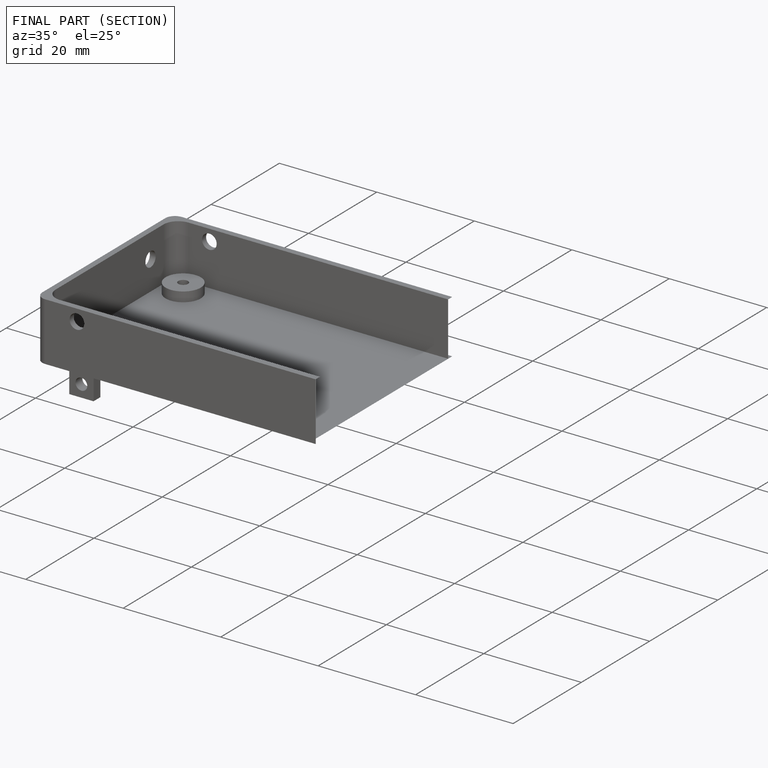
[diagram: finished part — half-section view (interior)]
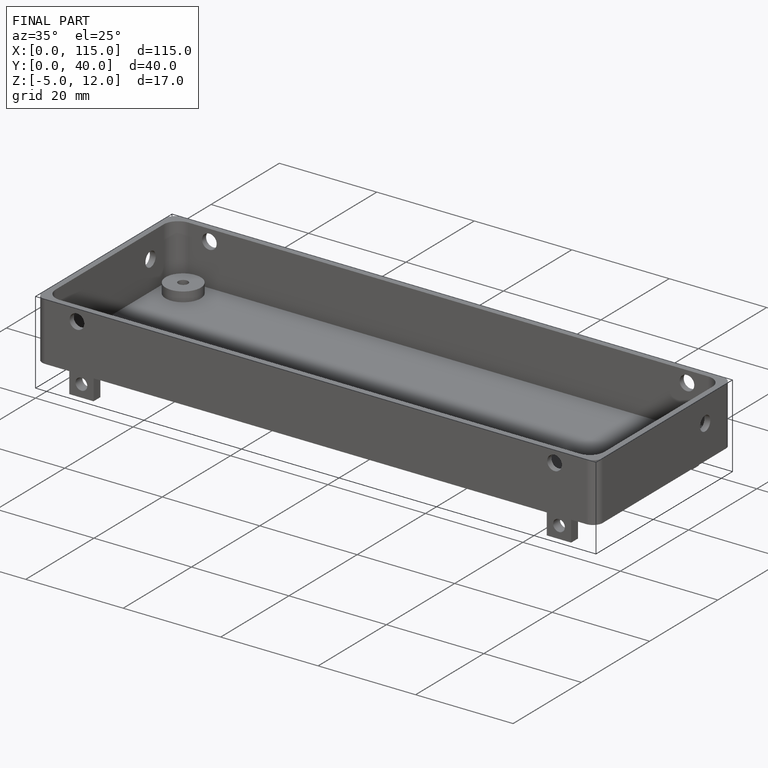
[diagram: finished part — iso view with bounding-box wireframe]
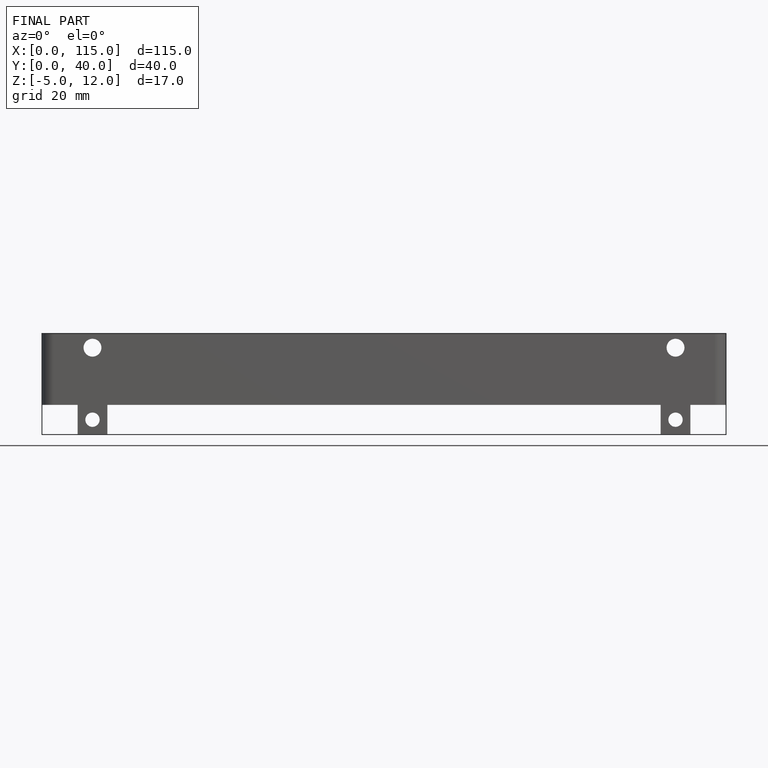
[diagram: finished part — front view with bounding-box wireframe]
